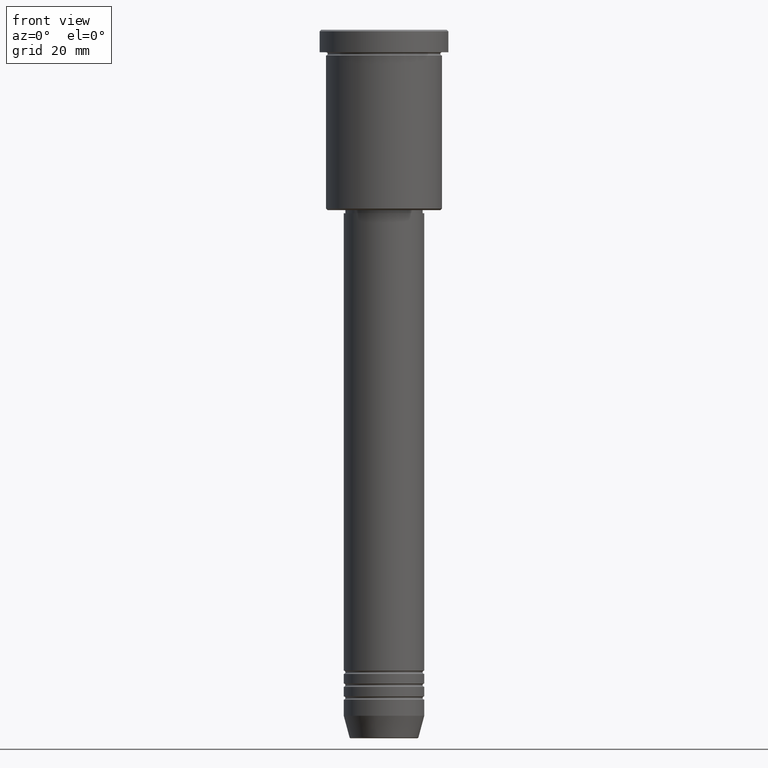
[diagram: clean part render]
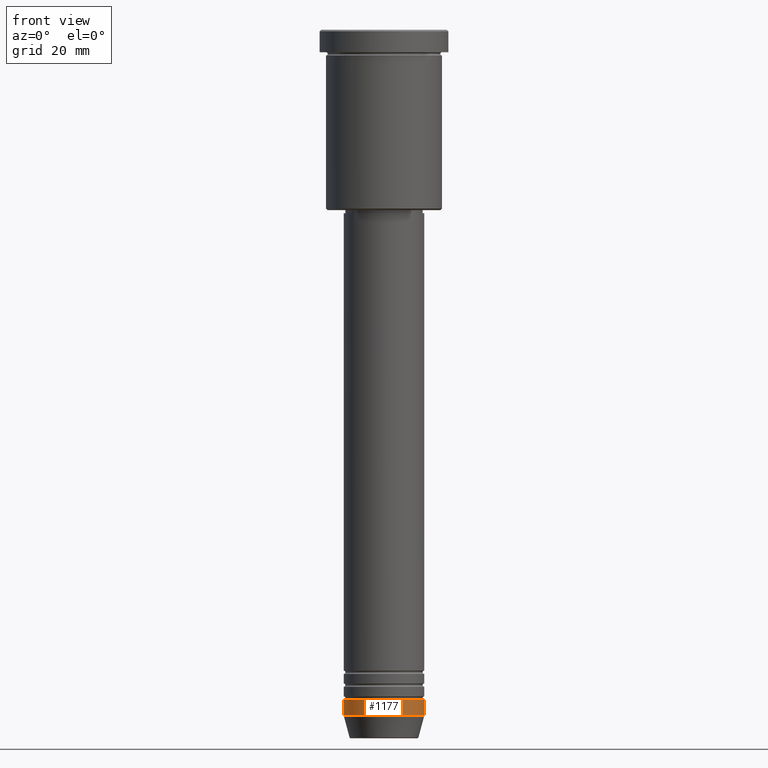
[diagram: same view with one face highlighted and labeled with its STEP entity id]
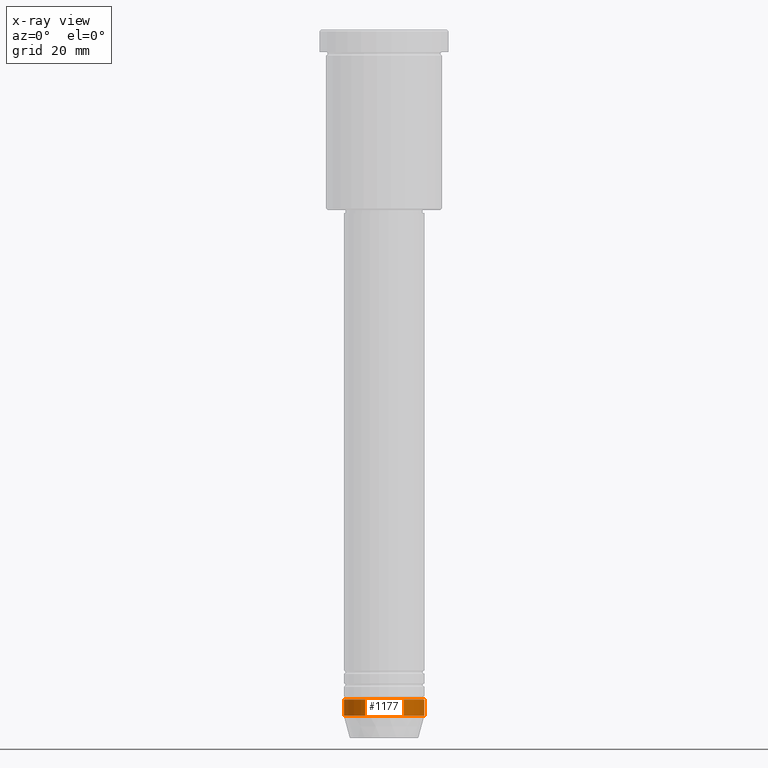
[diagram: x-ray of the same camera — body ghosted, the highlighted face saturated]
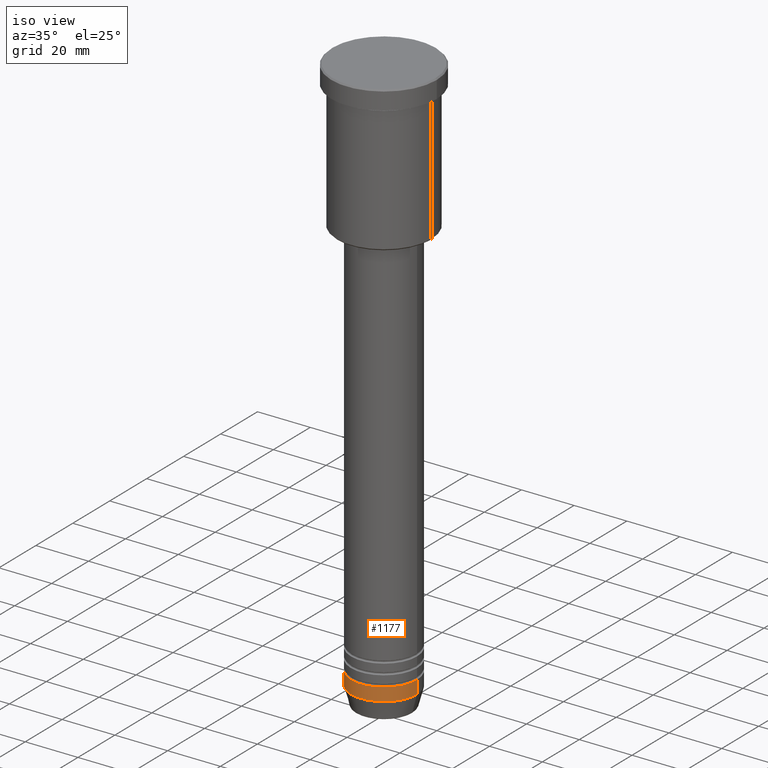
[diagram: same view with one face highlighted and labeled with its STEP entity id]
A machine part, front view. The second image highlights one B-rep face of the part: STEP entity #1177.
The next image is the same camera in x-ray: the body ghosted, the highlighted face saturated — about 0% of this face is hidden behind the body in this view.
A second angle (iso view) of the same face is appended — the face is thin or edge-on in the first view.
In plain terms, the highlighted cylindrical surface (partial cylindrical patch) has radius 12.5 mm, axis along (-0, -0, 1).
Its self-contained STEP definition (entity closure, byte-faithful):
#37 = EDGE_LOOP ( 'NONE', ( #164, #582, #403, #912 ) ) ;
#90 = DIRECTION ( 'NONE',  ( -0.000000000000000000, -0.000000000000000000, 1.000000000000000000 ) ) ;
#96 = EDGE_CURVE ( 'NONE', #521, #588, #1095, .T. ) ;
#126 = CARTESIAN_POINT ( 'NONE',  ( -12.50000000000000000, 1.530808498934191521E-15, -208.0000000000000000 ) ) ;
#140 = VECTOR ( 'NONE', #1067, 1000.000000000000000 ) ;
#164 = ORIENTED_EDGE ( 'NONE', *, *, #1042, .F. ) ;
#172 = LINE ( 'NONE', #634, #140 ) ;
#193 = VERTEX_POINT ( 'NONE', #528 ) ;
#281 = AXIS2_PLACEMENT_3D ( 'NONE', #1171, #359, #713 ) ;
#339 = CARTESIAN_POINT ( 'NONE',  ( 0.000000000000000000, 0.000000000000000000, -208.0000000000000000 ) ) ;
#359 = DIRECTION ( 'NONE',  ( -0.000000000000000000, -0.000000000000000000, 1.000000000000000000 ) ) ;
#391 = CARTESIAN_POINT ( 'NONE',  ( -12.50000000000000000, 1.530808498934191521E-15, -213.0000000000000000 ) ) ;
#395 = VECTOR ( 'NONE', #949, 1000.000000000000000 ) ;
#403 = ORIENTED_EDGE ( 'NONE', *, *, #687, .T. ) ;
#494 = DIRECTION ( 'NONE',  ( -0.000000000000000000, -0.000000000000000000, 1.000000000000000000 ) ) ;
#503 = DIRECTION ( 'NONE',  ( 1.000000000000000000, 0.000000000000000000, 0.000000000000000000 ) ) ;
#521 = VERTEX_POINT ( 'NONE', #126 ) ;
#528 = CARTESIAN_POINT ( 'NONE',  ( 12.50000000000000000, 0.000000000000000000, -213.0000000000000000 ) ) ;
#557 = CYLINDRICAL_SURFACE ( 'NONE', #1152, 12.50000000000000000 ) ;
#565 = CARTESIAN_POINT ( 'NONE',  ( 12.50000000000000000, 0.000000000000000000, 0.000000000000000000 ) ) ;
#582 = ORIENTED_EDGE ( 'NONE', *, *, #1022, .T. ) ;
#588 = VERTEX_POINT ( 'NONE', #950 ) ;
#607 = VERTEX_POINT ( 'NONE', #391 ) ;
#634 = CARTESIAN_POINT ( 'NONE',  ( -12.50000000000000000, 1.530808498934191521E-15, 0.000000000000000000 ) ) ;
#687 = EDGE_CURVE ( 'NONE', #193, #588, #1023, .T. ) ;
#713 = DIRECTION ( 'NONE',  ( 1.000000000000000000, 0.000000000000000000, 0.000000000000000000 ) ) ;
#725 = FACE_OUTER_BOUND ( 'NONE', #37, .T. ) ;
#817 = CARTESIAN_POINT ( 'NONE',  ( 0.000000000000000000, 0.000000000000000000, 0.000000000000000000 ) ) ;
#909 = AXIS2_PLACEMENT_3D ( 'NONE', #339, #494, #503 ) ;
#912 = ORIENTED_EDGE ( 'NONE', *, *, #96, .F. ) ;
#919 = DIRECTION ( 'NONE',  ( 1.000000000000000000, 0.000000000000000000, 0.000000000000000000 ) ) ;
#949 = DIRECTION ( 'NONE',  ( -0.000000000000000000, -0.000000000000000000, 1.000000000000000000 ) ) ;
#950 = CARTESIAN_POINT ( 'NONE',  ( 12.50000000000000000, 0.000000000000000000, -208.0000000000000000 ) ) ;
#989 = CIRCLE ( 'NONE', #281, 12.50000000000000000 ) ;
#1022 = EDGE_CURVE ( 'NONE', #607, #193, #989, .T. ) ;
#1023 = LINE ( 'NONE', #565, #395 ) ;
#1042 = EDGE_CURVE ( 'NONE', #607, #521, #172, .T. ) ;
#1067 = DIRECTION ( 'NONE',  ( -0.000000000000000000, -0.000000000000000000, 1.000000000000000000 ) ) ;
#1095 = CIRCLE ( 'NONE', #909, 12.50000000000000000 ) ;
#1152 = AXIS2_PLACEMENT_3D ( 'NONE', #817, #90, #919 ) ;
#1171 = CARTESIAN_POINT ( 'NONE',  ( 0.000000000000000000, 0.000000000000000000, -213.0000000000000000 ) ) ;
#1177 = ADVANCED_FACE ( 'NONE', ( #725 ), #557, .T. ) ;